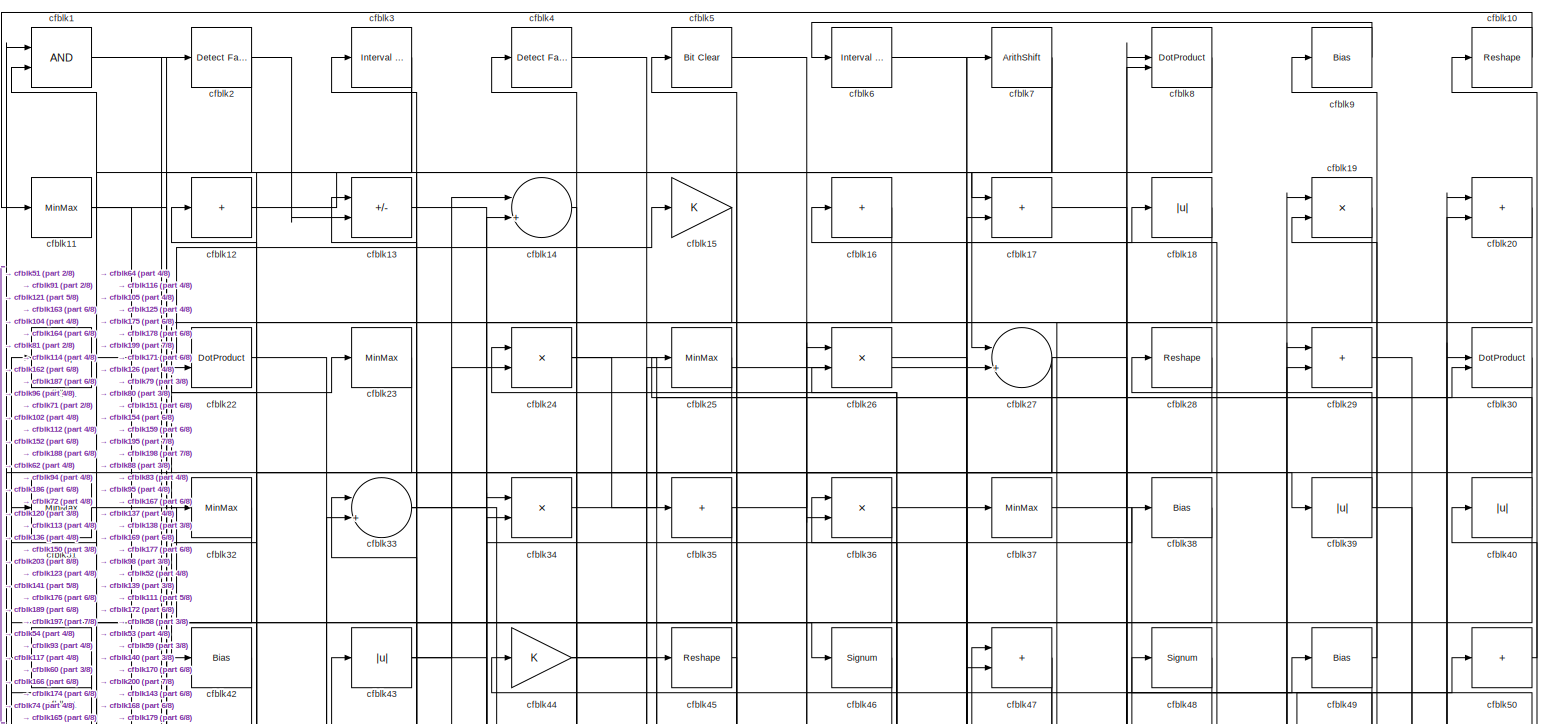
[diagram: root canvas - part 1/8, full width, top band]
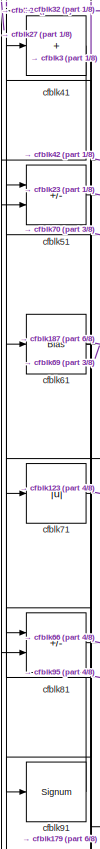
[diagram: root canvas - part 2/8, middle left region]
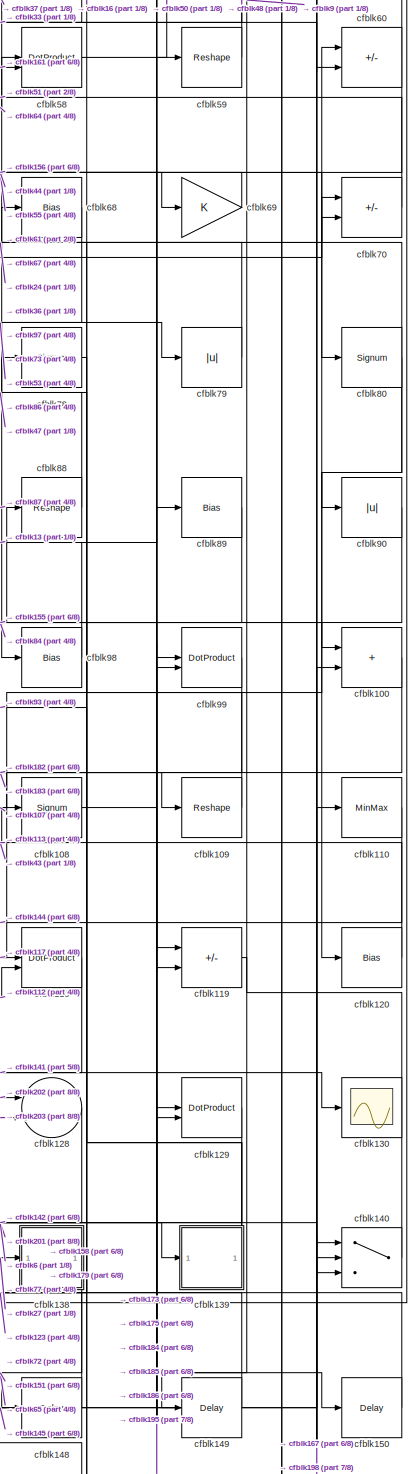
[diagram: root canvas - part 3/8, middle right region]
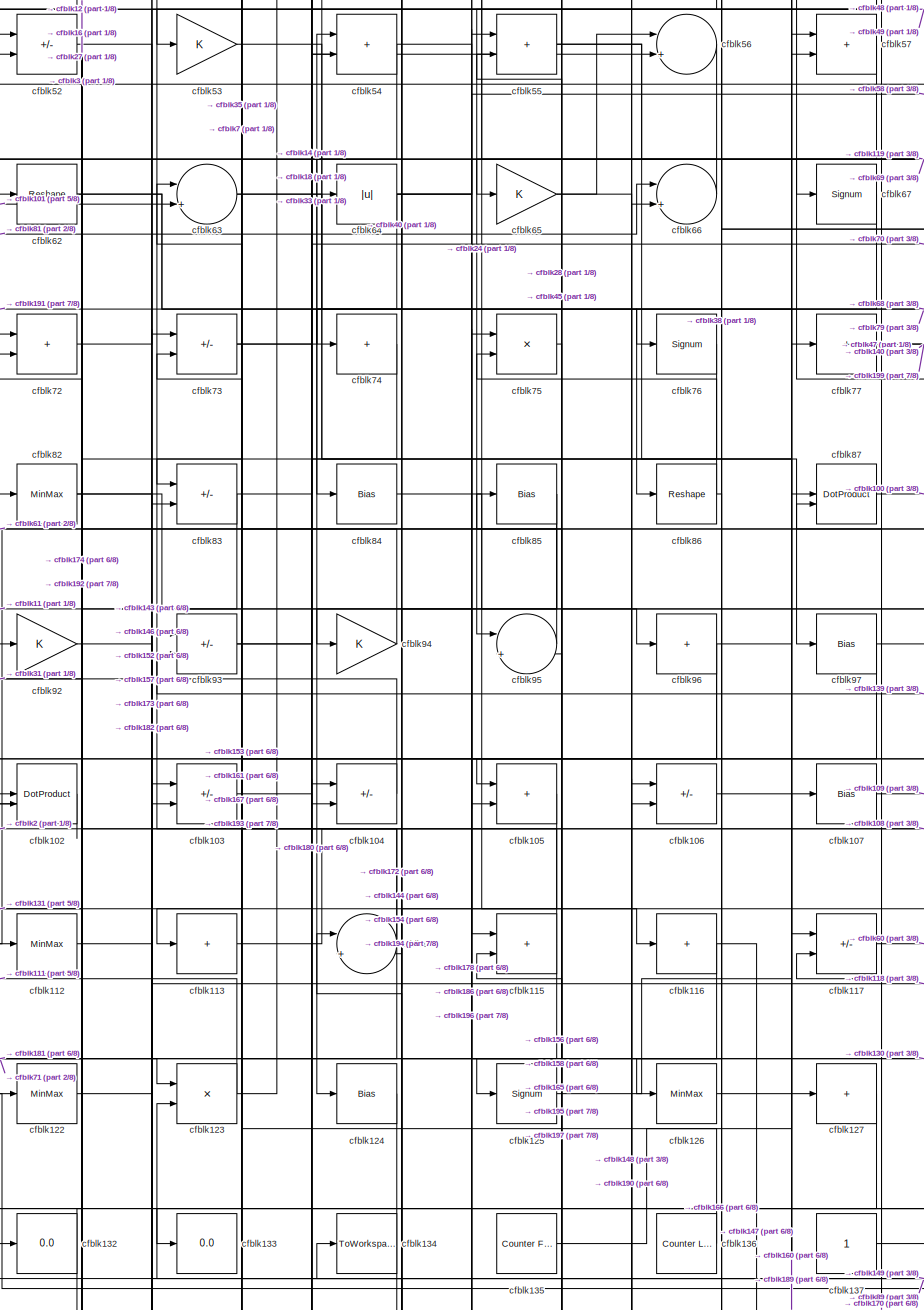
[diagram: root canvas - part 4/8, central region]
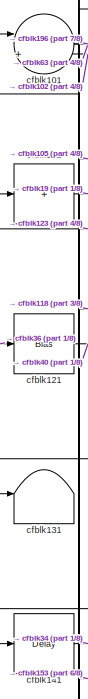
[diagram: root canvas - part 5/8, middle left region]
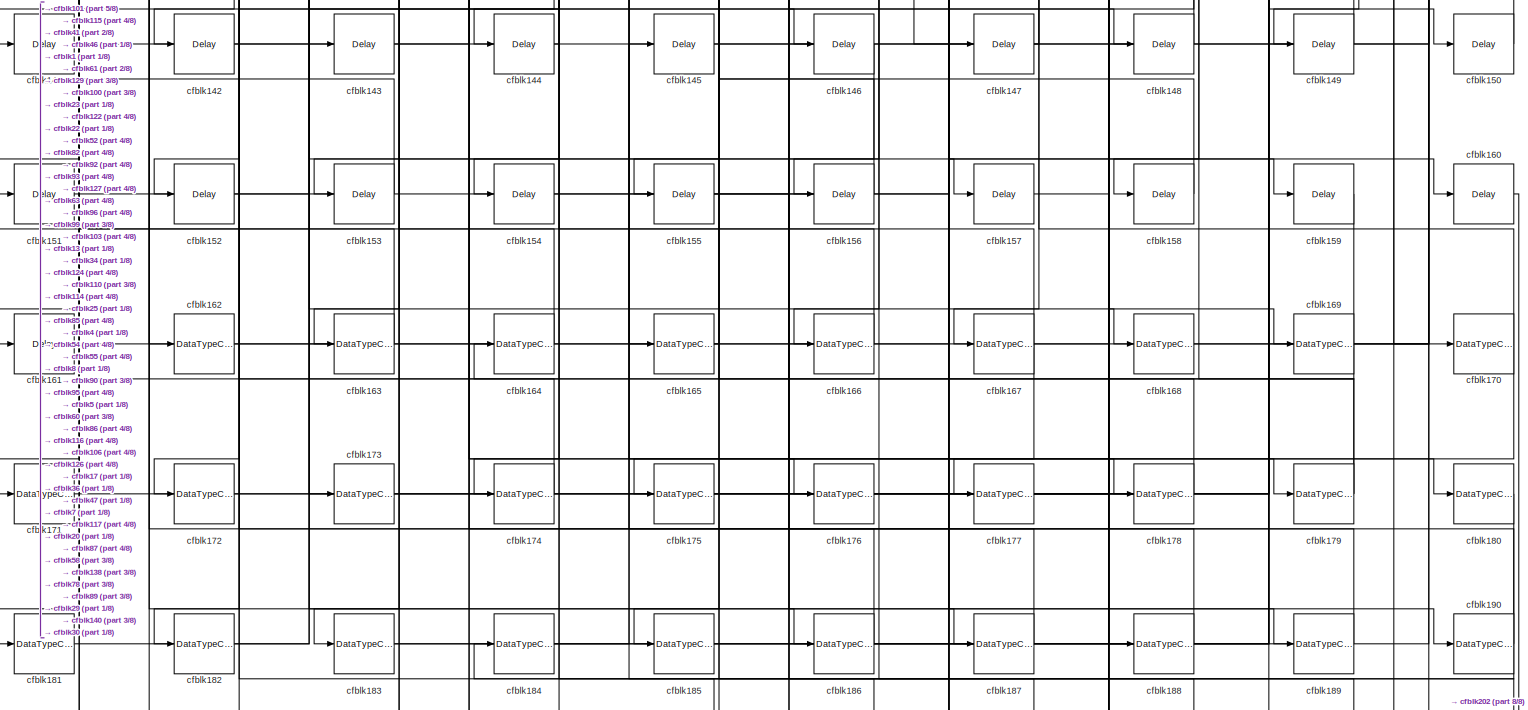
[diagram: root canvas - part 6/8, full width, bottom band]
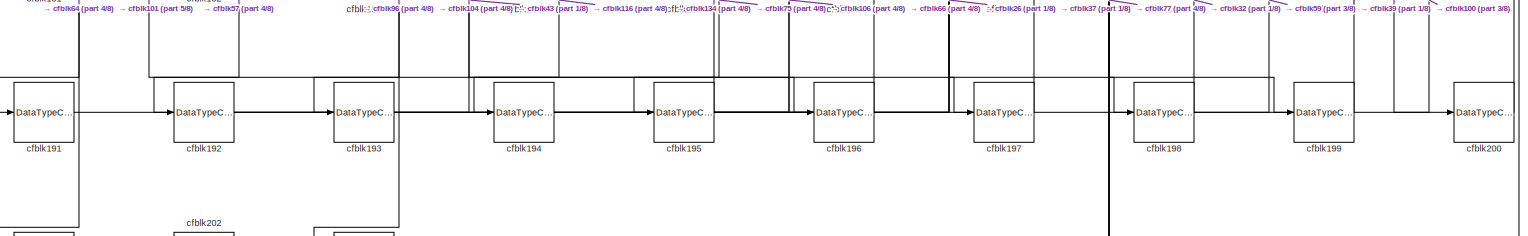
[diagram: root canvas - part 7/8, full width, bottom band]
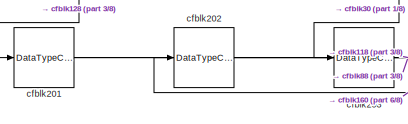
[diagram: root canvas - part 8/8, bottom left region]
MODEL slx_cafd8b495553
KIND model
CONFIG AbsTol = auto
CONFIG EnableMultiTasking = off
CONFIG FixedStep = auto
CONFIG MaxStep = auto
CONFIG MinStep = auto
CONFIG RelTol = 1e-3
CONFIG SampleTimeConstraint = Unconstrained
CONFIG SolverName = VariableStepAuto
CONFIG StartTime = 0.0
CONFIG StopTime = 10.0
BLOCK [Logic] cfblk1
  AllPortsSameDT = off
  OutDataTypeStr = boolean
BLOCK [Reshape] cfblk10
BLOCK [Sum] cfblk100
  IconShape = rectangular
BLOCK [Sum] cfblk101
  Inputs = |++
BLOCK [DotProduct] cfblk102
  OutDataTypeStr = Inherit: Inherit via internal rule
BLOCK [Sum] cfblk103
  IconShape = rectangular
  Inputs = +-
BLOCK [Sum] cfblk104
  IconShape = rectangular
  Inputs = +-
BLOCK [Sum] cfblk105
  IconShape = rectangular
BLOCK [Sum] cfblk106
  IconShape = rectangular
  Inputs = +-
BLOCK [Bias] cfblk107
  Bias = 0.0
  SaturateOnIntegerOverflow = off
BLOCK [Signum] cfblk108
BLOCK [Reshape] cfblk109
BLOCK [MinMax] cfblk11
BLOCK [MinMax] cfblk110
BLOCK [Sum] cfblk111
  IconShape = rectangular
  Inputs = +
BLOCK [MinMax] cfblk112
BLOCK [Sum] cfblk113
  IconShape = rectangular
  Inputs = +
BLOCK [Sum] cfblk114
  Inputs = |++
BLOCK [Sum] cfblk115
  IconShape = rectangular
BLOCK [Sum] cfblk116
  IconShape = rectangular
  Inputs = +
BLOCK [Sum] cfblk117
  IconShape = rectangular
  Inputs = +-
BLOCK [DotProduct] cfblk118
  OutDataTypeStr = Inherit: Inherit via internal rule
BLOCK [Sum] cfblk119
  IconShape = rectangular
  Inputs = +-
BLOCK [Sum] cfblk12
  IconShape = rectangular
  Inputs = +
BLOCK [Bias] cfblk120
  Bias = 0.0
  SaturateOnIntegerOverflow = off
BLOCK [Bias] cfblk121
  Bias = 0.0
  SaturateOnIntegerOverflow = off
BLOCK [MinMax] cfblk122
BLOCK [Product] cfblk123
  Inputs = */
  RndMeth = Zero
  SaturateOnIntegerOverflow = on
BLOCK [Bias] cfblk124
  Bias = 0.0
  SaturateOnIntegerOverflow = off
BLOCK [Signum] cfblk125
BLOCK [MinMax] cfblk126
BLOCK [Sum] cfblk127
  IconShape = rectangular
  Inputs = +
BLOCK [Sum] cfblk128
  Inputs = |++
BLOCK [DotProduct] cfblk129
  OutDataTypeStr = Inherit: Inherit via internal rule
BLOCK [Sum] cfblk13
  IconShape = rectangular
  Inputs = +-
BLOCK [Scope] cfblk130
  Floating = off
  NumInputPorts = 1
  ScopeSpecificationString = Simulink.scopes.TimeScopeBlockCfg('CurrentConfiguration', extmgr.ConfigurationSet(extmgr.Configuration('Core','General UI',true),extmgr.Configuration('Core','Source UI',true),extmgr.Configuration('Sources','WiredSimulink',true,'DataLoggingVariableName','ScopeData2','DataLoggingSaveFormat','Array','DataLoggingLimitDataPoints',true,'DataLoggingDecimation','1'),extmgr.Configuration('Visuals','Time Do...<+868ch>
BLOCK [Terminator] cfblk131
BLOCK [Display] cfblk132
  Decimation = 1
BLOCK [Display] cfblk133
  Decimation = 1
BLOCK [ToWorkspace] cfblk134
  MaxDataPoints = inf
  SampleTime = -1
  SaveFormat = Timeseries
  VariableName = simout
BLOCK [Reference] cfblk135  REF=hdlsllib/Sources/Counter
Free-Running
  SourceBlock = hdlsllib/Sources/Counter\nFree-Running
  SourceType = Counter Free-Running
BLOCK [Reference] cfblk136  REF=hdlsllib/Sources/Counter
Limited
  SourceBlock = hdlsllib/Sources/Counter\nLimited
  SourceType = Counter Limited
BLOCK [Constant] cfblk137
  SampleTime = -1
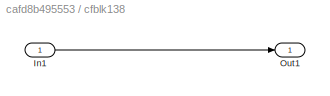
BLOCK [SubSystem] cfblk138
  LibrarySourceBlock = hdlsllib/Ports &\nSubsystems/Subsystem
BLOCK [Inport] cfblk138/In1
BLOCK [Outport] cfblk138/Out1
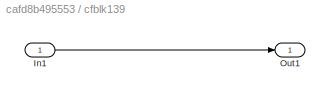
BLOCK [SubSystem] cfblk139
  LibrarySourceBlock = hdlsllib/Ports &\nSubsystems/Subsystem
BLOCK [Inport] cfblk139/In1
BLOCK [Outport] cfblk139/Out1
BLOCK [Sum] cfblk14
  Inputs = |++
BLOCK [Switch] cfblk140
  InputSameDT = off
  SaturateOnIntegerOverflow = off
BLOCK [Delay] cfblk141
  InputPortMap = u0
  SampleTime = 1
BLOCK [Delay] cfblk142
  InputPortMap = u0
  SampleTime = 1
BLOCK [Delay] cfblk143
  InputPortMap = u0
  SampleTime = 1
BLOCK [Delay] cfblk144
  InputPortMap = u0
  SampleTime = 1
BLOCK [Delay] cfblk145
  InputPortMap = u0
  SampleTime = 1
BLOCK [Delay] cfblk146
  InputPortMap = u0
  SampleTime = 1
BLOCK [Delay] cfblk147
  InputPortMap = u0
  SampleTime = 1
BLOCK [Delay] cfblk148
  InputPortMap = u0
  SampleTime = 1
BLOCK [Delay] cfblk149
  InputPortMap = u0
  SampleTime = 1
BLOCK [Gain] cfblk15
BLOCK [Delay] cfblk150
  InputPortMap = u0
  SampleTime = 1
BLOCK [Delay] cfblk151
  InputPortMap = u0
  SampleTime = 1
BLOCK [Delay] cfblk152
  InputPortMap = u0
  SampleTime = 1
BLOCK [Delay] cfblk153
  InputPortMap = u0
  SampleTime = 1
BLOCK [Delay] cfblk154
  InputPortMap = u0
  SampleTime = 1
BLOCK [Delay] cfblk155
  InputPortMap = u0
  SampleTime = 1
BLOCK [Delay] cfblk156
  InputPortMap = u0
  SampleTime = 1
BLOCK [Delay] cfblk157
  InputPortMap = u0
  SampleTime = 1
BLOCK [Delay] cfblk158
  InputPortMap = u0
  SampleTime = 1
BLOCK [Delay] cfblk159
  InputPortMap = u0
  SampleTime = 1
BLOCK [Sum] cfblk16
  IconShape = rectangular
  Inputs = +
BLOCK [Delay] cfblk160
  InputPortMap = u0
  SampleTime = 1
BLOCK [Delay] cfblk161
  InputPortMap = u0
  SampleTime = 1
BLOCK [DataTypeConversion] cfblk162
  OutDataTypeStr = uint8
  RndMeth = Floor
  SaturateOnIntegerOverflow = off
BLOCK [DataTypeConversion] cfblk163
  OutDataTypeStr = uint8
  RndMeth = Floor
  SaturateOnIntegerOverflow = off
BLOCK [DataTypeConversion] cfblk164
  OutDataTypeStr = uint8
  RndMeth = Floor
  SaturateOnIntegerOverflow = off
BLOCK [DataTypeConversion] cfblk165
  OutDataTypeStr = uint8
  RndMeth = Floor
  SaturateOnIntegerOverflow = off
BLOCK [DataTypeConversion] cfblk166
  OutDataTypeStr = uint8
  RndMeth = Floor
  SaturateOnIntegerOverflow = off
BLOCK [DataTypeConversion] cfblk167
  RndMeth = Floor
  SaturateOnIntegerOverflow = off
BLOCK [DataTypeConversion] cfblk168
  OutDataTypeStr = uint8
  RndMeth = Floor
  SaturateOnIntegerOverflow = off
BLOCK [DataTypeConversion] cfblk169
  OutDataTypeStr = uint8
  RndMeth = Floor
  SaturateOnIntegerOverflow = off
BLOCK [Sum] cfblk17
  IconShape = rectangular
BLOCK [DataTypeConversion] cfblk170
  RndMeth = Floor
  SaturateOnIntegerOverflow = off
BLOCK [DataTypeConversion] cfblk171
  OutDataTypeStr = uint8
  RndMeth = Floor
  SaturateOnIntegerOverflow = off
BLOCK [DataTypeConversion] cfblk172
  OutDataTypeStr = uint8
  RndMeth = Floor
  SaturateOnIntegerOverflow = off
BLOCK [DataTypeConversion] cfblk173
  OutDataTypeStr = uint8
  RndMeth = Floor
  SaturateOnIntegerOverflow = off
BLOCK [DataTypeConversion] cfblk174
  OutDataTypeStr = uint8
  RndMeth = Floor
  SaturateOnIntegerOverflow = off
BLOCK [DataTypeConversion] cfblk175
  OutDataTypeStr = uint8
  RndMeth = Floor
  SaturateOnIntegerOverflow = off
BLOCK [DataTypeConversion] cfblk176
  OutDataTypeStr = uint8
  RndMeth = Floor
  SaturateOnIntegerOverflow = off
BLOCK [DataTypeConversion] cfblk177
  OutDataTypeStr = uint8
  RndMeth = Floor
  SaturateOnIntegerOverflow = off
BLOCK [DataTypeConversion] cfblk178
  OutDataTypeStr = boolean
  RndMeth = Floor
  SaturateOnIntegerOverflow = off
BLOCK [DataTypeConversion] cfblk179
  RndMeth = Floor
  SaturateOnIntegerOverflow = off
BLOCK [Abs] cfblk18
  SaturateOnIntegerOverflow = off
BLOCK [DataTypeConversion] cfblk180
  OutDataTypeStr = uint8
  RndMeth = Floor
  SaturateOnIntegerOverflow = off
BLOCK [DataTypeConversion] cfblk181
  OutDataTypeStr = uint8
  RndMeth = Floor
  SaturateOnIntegerOverflow = off
BLOCK [DataTypeConversion] cfblk182
  OutDataTypeStr = uint8
  RndMeth = Floor
  SaturateOnIntegerOverflow = off
BLOCK [DataTypeConversion] cfblk183
  RndMeth = Floor
  SaturateOnIntegerOverflow = off
BLOCK [DataTypeConversion] cfblk184
  OutDataTypeStr = uint8
  RndMeth = Floor
  SaturateOnIntegerOverflow = off
BLOCK [DataTypeConversion] cfblk185
  OutDataTypeStr = uint8
  RndMeth = Floor
  SaturateOnIntegerOverflow = off
BLOCK [DataTypeConversion] cfblk186
  RndMeth = Floor
  SaturateOnIntegerOverflow = off
BLOCK [DataTypeConversion] cfblk187
  OutDataTypeStr = uint8
  RndMeth = Floor
  SaturateOnIntegerOverflow = off
BLOCK [DataTypeConversion] cfblk188
  OutDataTypeStr = uint8
  RndMeth = Floor
  SaturateOnIntegerOverflow = off
BLOCK [DataTypeConversion] cfblk189
  OutDataTypeStr = uint8
  RndMeth = Floor
  SaturateOnIntegerOverflow = off
BLOCK [Product] cfblk19
  Inputs = */
  RndMeth = Zero
  SaturateOnIntegerOverflow = on
BLOCK [DataTypeConversion] cfblk190
  OutDataTypeStr = uint8
  RndMeth = Floor
  SaturateOnIntegerOverflow = off
BLOCK [DataTypeConversion] cfblk191
  OutDataTypeStr = uint8
  RndMeth = Floor
  SaturateOnIntegerOverflow = off
BLOCK [DataTypeConversion] cfblk192
  RndMeth = Floor
  SaturateOnIntegerOverflow = off
BLOCK [DataTypeConversion] cfblk193
  OutDataTypeStr = uint8
  RndMeth = Floor
  SaturateOnIntegerOverflow = off
BLOCK [DataTypeConversion] cfblk194
  OutDataTypeStr = uint8
  RndMeth = Floor
  SaturateOnIntegerOverflow = off
BLOCK [DataTypeConversion] cfblk195
  RndMeth = Floor
  SaturateOnIntegerOverflow = off
BLOCK [DataTypeConversion] cfblk196
  OutDataTypeStr = uint8
  RndMeth = Floor
  SaturateOnIntegerOverflow = off
BLOCK [DataTypeConversion] cfblk197
  OutDataTypeStr = uint8
  RndMeth = Floor
  SaturateOnIntegerOverflow = off
BLOCK [DataTypeConversion] cfblk198
  RndMeth = Floor
  SaturateOnIntegerOverflow = off
BLOCK [DataTypeConversion] cfblk199
  OutDataTypeStr = uint8
  RndMeth = Floor
  SaturateOnIntegerOverflow = off
BLOCK [Reference] cfblk2  REF=hdlsllib/Logic and Bit
Operations/Detect Fall
Nonpositive
  SourceBlock = hdlsllib/Logic and Bit\nOperations/Detect Fall\nNonpositive
  SourceType = Detect Fall Nonpositive
BLOCK [Sum] cfblk20
  IconShape = rectangular
BLOCK [DataTypeConversion] cfblk200
  OutDataTypeStr = uint8
  RndMeth = Floor
  SaturateOnIntegerOverflow = off
BLOCK [DataTypeConversion] cfblk201
  RndMeth = Floor
  SaturateOnIntegerOverflow = off
BLOCK [DataTypeConversion] cfblk202
  OutDataTypeStr = uint8
  RndMeth = Floor
  SaturateOnIntegerOverflow = off
BLOCK [DataTypeConversion] cfblk203
  OutDataTypeStr = uint8
  RndMeth = Floor
  SaturateOnIntegerOverflow = off
BLOCK [Reshape] cfblk21
BLOCK [DotProduct] cfblk22
  OutDataTypeStr = Inherit: Inherit via internal rule
BLOCK [MinMax] cfblk23
BLOCK [Product] cfblk24
  Inputs = */
  RndMeth = Zero
  SaturateOnIntegerOverflow = on
BLOCK [MinMax] cfblk25
BLOCK [Product] cfblk26
  Inputs = */
  RndMeth = Zero
  SaturateOnIntegerOverflow = on
BLOCK [Sum] cfblk27
  Inputs = |++
BLOCK [Reshape] cfblk28
BLOCK [Sum] cfblk29
  IconShape = rectangular
BLOCK [Reference] cfblk3  REF=hdlsllib/Logic and Bit
Operations/Interval Test
  SourceBlock = hdlsllib/Logic and Bit\nOperations/Interval Test
  SourceType = Interval Test
BLOCK [DotProduct] cfblk30
  OutDataTypeStr = Inherit: Inherit via internal rule
BLOCK [MinMax] cfblk31
BLOCK [MinMax] cfblk32
BLOCK [Sum] cfblk33
  Inputs = |++
BLOCK [Product] cfblk34
  Inputs = */
  RndMeth = Zero
  SaturateOnIntegerOverflow = on
BLOCK [Sum] cfblk35
  IconShape = rectangular
  Inputs = +
BLOCK [Product] cfblk36
  Inputs = */
  RndMeth = Zero
  SaturateOnIntegerOverflow = on
BLOCK [MinMax] cfblk37
BLOCK [Bias] cfblk38
  Bias = 0.0
  SaturateOnIntegerOverflow = off
BLOCK [Abs] cfblk39
  SaturateOnIntegerOverflow = off
BLOCK [Reference] cfblk4  REF=hdlsllib/Logic and Bit
Operations/Detect Fall
Negative
  SourceBlock = hdlsllib/Logic and Bit\nOperations/Detect Fall\nNegative
  SourceType = Detect Fall Negative
BLOCK [Abs] cfblk40
  SaturateOnIntegerOverflow = off
BLOCK [Sum] cfblk41
  IconShape = rectangular
  Inputs = +
BLOCK [Bias] cfblk42
  Bias = 0.0
  SaturateOnIntegerOverflow = off
BLOCK [Abs] cfblk43
  SaturateOnIntegerOverflow = off
BLOCK [Gain] cfblk44
BLOCK [Reshape] cfblk45
BLOCK [Signum] cfblk46
BLOCK [Sum] cfblk47
  IconShape = rectangular
BLOCK [Signum] cfblk48
BLOCK [Bias] cfblk49
  Bias = 0.0
  SaturateOnIntegerOverflow = off
BLOCK [Reference] cfblk5  REF=simulink/Logic and Bit
Operations/Bit Clear
  LibrarySourceBlock = hdlsllib/Logic and Bit\nOperations/Bit Clear
  SourceBlock = simulink/Logic and Bit\nOperations/Bit Clear
  SourceType = Bit Clear
BLOCK [Sum] cfblk50
  IconShape = rectangular
  Inputs = +
BLOCK [Sum] cfblk51
  IconShape = rectangular
  Inputs = +-
BLOCK [Sum] cfblk52
  IconShape = rectangular
  Inputs = +-
BLOCK [Gain] cfblk53
BLOCK [Sum] cfblk54
  IconShape = rectangular
BLOCK [Sum] cfblk55
  IconShape = rectangular
BLOCK [Sum] cfblk56
  Inputs = |++
BLOCK [Sum] cfblk57
  IconShape = rectangular
BLOCK [DotProduct] cfblk58
  OutDataTypeStr = Inherit: Inherit via internal rule
BLOCK [Reshape] cfblk59
BLOCK [Reference] cfblk6  REF=hdlsllib/Logic and Bit
Operations/Interval Test
  SourceBlock = hdlsllib/Logic and Bit\nOperations/Interval Test
  SourceType = Interval Test
BLOCK [Sum] cfblk60
  IconShape = rectangular
  Inputs = +-
BLOCK [Bias] cfblk61
  Bias = 0.0
  SaturateOnIntegerOverflow = off
BLOCK [Reshape] cfblk62
BLOCK [Sum] cfblk63
  Inputs = |++
BLOCK [Abs] cfblk64
  SaturateOnIntegerOverflow = off
BLOCK [Gain] cfblk65
BLOCK [Sum] cfblk66
  Inputs = |++
BLOCK [Signum] cfblk67
BLOCK [Bias] cfblk68
  Bias = 0.0
  SaturateOnIntegerOverflow = off
BLOCK [Gain] cfblk69
BLOCK [ArithShift] cfblk7
  BitShiftNumber = 8
  InputPortMap = u0
BLOCK [Sum] cfblk70
  IconShape = rectangular
  Inputs = +-
BLOCK [Abs] cfblk71
  SaturateOnIntegerOverflow = off
BLOCK [Sum] cfblk72
  IconShape = rectangular
BLOCK [Sum] cfblk73
  IconShape = rectangular
  Inputs = +-
BLOCK [Sum] cfblk74
  IconShape = rectangular
  Inputs = +
BLOCK [Product] cfblk75
  Inputs = */
  RndMeth = Zero
  SaturateOnIntegerOverflow = on
BLOCK [Signum] cfblk76
BLOCK [Sum] cfblk77
  IconShape = rectangular
  Inputs = +
BLOCK [Signum] cfblk78
BLOCK [Abs] cfblk79
  SaturateOnIntegerOverflow = off
BLOCK [DotProduct] cfblk8
  OutDataTypeStr = Inherit: Inherit via internal rule
BLOCK [Signum] cfblk80
BLOCK [Sum] cfblk81
  IconShape = rectangular
  Inputs = +-
BLOCK [MinMax] cfblk82
BLOCK [Sum] cfblk83
  IconShape = rectangular
  Inputs = +-
BLOCK [Bias] cfblk84
  Bias = 0.0
  SaturateOnIntegerOverflow = off
BLOCK [Bias] cfblk85
  Bias = 0.0
  SaturateOnIntegerOverflow = off
BLOCK [Reshape] cfblk86
BLOCK [DotProduct] cfblk87
  OutDataTypeStr = Inherit: Inherit via internal rule
BLOCK [Reshape] cfblk88
BLOCK [Bias] cfblk89
  Bias = 0.0
  SaturateOnIntegerOverflow = off
BLOCK [Bias] cfblk9
  Bias = 0.0
  SaturateOnIntegerOverflow = off
BLOCK [Abs] cfblk90
  SaturateOnIntegerOverflow = off
BLOCK [Signum] cfblk91
BLOCK [Gain] cfblk92
BLOCK [Sum] cfblk93
  IconShape = rectangular
  Inputs = +-
BLOCK [Gain] cfblk94
BLOCK [Sum] cfblk95
  Inputs = |++
BLOCK [Sum] cfblk96
  IconShape = rectangular
  Inputs = +
BLOCK [Bias] cfblk97
  Bias = 0.0
  SaturateOnIntegerOverflow = off
BLOCK [Bias] cfblk98
  Bias = 0.0
  SaturateOnIntegerOverflow = off
BLOCK [DotProduct] cfblk99
  OutDataTypeStr = Inherit: Inherit via internal rule
LINE cfblk100:1 -> cfblk182:1
NET cfblk101:1 -> cfblk196:1, cfblk63:2
LINE cfblk102:1 -> cfblk101:2
LINE cfblk103:1 -> cfblk180:1
LINE cfblk104:1 -> cfblk31:1
LINE cfblk105:1 -> cfblk131:1
LINE cfblk106:1 -> cfblk189:1
LINE cfblk107:1 -> cfblk109:1
LINE cfblk108:1 -> cfblk150:1
LINE cfblk109:1 -> cfblk68:1
LINE cfblk10:1 -> cfblk11:1
LINE cfblk110:1 -> cfblk144:1
LINE cfblk111:1 -> cfblk19:1
LINE cfblk112:1 -> cfblk118:2
LINE cfblk113:1 -> cfblk108:1
NET cfblk114:1 -> cfblk133:1, cfblk2:1, cfblk73:2
NET cfblk115:1 -> cfblk181:1, cfblk72:2
NET cfblk116:1 -> cfblk147:1, cfblk194:1
LINE cfblk117:1 -> cfblk60:1
LINE cfblk118:1 -> cfblk141:1
LINE cfblk119:1 -> cfblk149:1
NET cfblk11:1 -> cfblk102:2, cfblk96:1
LINE cfblk120:1 -> cfblk43:1
LINE cfblk121:1 -> cfblk40:1
LINE cfblk122:1 -> cfblk146:1
NET cfblk123:1 -> cfblk111:1, cfblk24:2
LINE cfblk124:1 -> cfblk172:1
LINE cfblk125:1 -> cfblk107:1
LINE cfblk126:1 -> cfblk160:1
LINE cfblk127:1 -> cfblk153:1
LINE cfblk128:1 -> cfblk201:1
LINE cfblk129:1 -> cfblk142:1
LINE cfblk12:1 -> cfblk27:1
LINE cfblk135:1 -> cfblk77:1
LINE cfblk136:1 -> cfblk3:1
LINE cfblk137:1 -> cfblk49:1
LINE cfblk138/In1:1 -> cfblk138/Out1:1
LINE cfblk138:1 -> cfblk151:1
LINE cfblk139/In1:1 -> cfblk139/Out1:1
NET cfblk139:1 -> cfblk16:1, cfblk93:2
LINE cfblk13:1 -> cfblk176:1
LINE cfblk140:1 -> cfblk9:1
LINE cfblk141:1 -> cfblk34:2
LINE cfblk142:1 -> cfblk168:1
LINE cfblk143:1 -> cfblk30:1
LINE cfblk144:1 -> cfblk114:1
LINE cfblk145:1 -> cfblk140:2
LINE cfblk146:1 -> cfblk163:1
LINE cfblk147:1 -> cfblk117:2
LINE cfblk148:1 -> cfblk73:1
LINE cfblk149:1 -> cfblk72:1
LINE cfblk14:1 -> cfblk74:1
LINE cfblk150:1 -> cfblk33:1
LINE cfblk151:1 -> cfblk47:2
LINE cfblk152:1 -> cfblk93:1
LINE cfblk153:1 -> cfblk101:1
LINE cfblk154:1 -> cfblk17:2
LINE cfblk155:1 -> cfblk190:1
LINE cfblk156:1 -> cfblk115:2
LINE cfblk157:1 -> cfblk188:1
LINE cfblk158:1 -> cfblk95:2
LINE cfblk159:1 -> cfblk164:1
LINE cfblk15:1 -> cfblk42:1
LINE cfblk160:1 -> cfblk202:1
LINE cfblk161:1 -> cfblk58:2
LINE cfblk162:1 -> cfblk7:1
LINE cfblk163:1 -> cfblk1:1
LINE cfblk164:1 -> cfblk1:2
LINE cfblk165:1 -> cfblk85:1
LINE cfblk166:1 -> cfblk4:1
NET cfblk167:1 -> cfblk140:1, cfblk177:1, cfblk63:1
LINE cfblk168:1 -> cfblk20:1
LINE cfblk169:1 -> cfblk20:2
LINE cfblk16:1 -> cfblk112:1
NET cfblk170:1 -> cfblk185:1, cfblk87:2
LINE cfblk171:1 -> cfblk29:1
LINE cfblk172:1 -> cfblk29:2
LINE cfblk173:1 -> cfblk129:2
LINE cfblk174:1 -> cfblk92:1
LINE cfblk175:1 -> cfblk129:1
LINE cfblk176:1 -> cfblk8:1
LINE cfblk177:1 -> cfblk8:2
LINE cfblk178:1 -> cfblk5:1
NET cfblk179:1 -> cfblk41:1, cfblk78:1
LINE cfblk17:1 -> cfblk169:1
LINE cfblk180:1 -> cfblk184:1
LINE cfblk181:1 -> cfblk103:1
LINE cfblk182:1 -> cfblk103:2
NET cfblk183:1 -> cfblk110:1, cfblk145:1
LINE cfblk184:1 -> cfblk99:1
LINE cfblk185:1 -> cfblk99:2
NET cfblk186:1 -> cfblk55:1, cfblk89:1
LINE cfblk187:1 -> cfblk22:1
LINE cfblk188:1 -> cfblk22:2
LINE cfblk189:1 -> cfblk34:1
LINE cfblk18:1 -> cfblk54:2
LINE cfblk190:1 -> cfblk106:1
LINE cfblk191:1 -> cfblk106:2
NET cfblk192:1 -> cfblk104:1, cfblk66:2
LINE cfblk193:1 -> cfblk57:1
LINE cfblk194:1 -> cfblk57:2
NET cfblk195:1 -> cfblk134:1, cfblk37:1, cfblk59:1
LINE cfblk196:1 -> cfblk75:1
LINE cfblk197:1 -> cfblk75:2
NET cfblk198:1 -> cfblk100:2, cfblk32:1
LINE cfblk199:1 -> cfblk26:1
LINE cfblk19:1 -> cfblk36:2
LINE cfblk1:1 -> cfblk162:1
LINE cfblk200:1 -> cfblk26:2
NET cfblk201:1 -> cfblk118:1, cfblk88:1
LINE cfblk202:1 -> cfblk128:1
LINE cfblk203:1 -> cfblk128:2
LINE cfblk20:1 -> cfblk167:1
LINE cfblk21:1 -> cfblk15:1
LINE cfblk22:1 -> cfblk186:1
LINE cfblk23:1 -> cfblk152:1
NET cfblk24:1 -> cfblk116:1, cfblk35:1
LINE cfblk25:1 -> cfblk174:1
LINE cfblk26:1 -> cfblk198:1
NET cfblk27:1 -> cfblk102:1, cfblk138:1, cfblk51:2
LINE cfblk28:1 -> cfblk125:1
LINE cfblk29:1 -> cfblk170:1
NET cfblk2:1 -> cfblk13:2, cfblk52:2
LINE cfblk30:1 -> cfblk203:1
LINE cfblk31:1 -> cfblk46:1
LINE cfblk32:1 -> cfblk81:1
NET cfblk33:1 -> cfblk117:1, cfblk60:2
LINE cfblk34:1 -> cfblk30:2
NET cfblk35:1 -> cfblk113:1, cfblk39:1
NET cfblk36:1 -> cfblk121:1, cfblk159:1
LINE cfblk37:1 -> cfblk98:1
LINE cfblk38:1 -> cfblk126:1
NET cfblk39:1 -> cfblk200:1, cfblk28:1
NET cfblk3:1 -> cfblk62:1, cfblk91:1
NET cfblk40:1 -> cfblk114:2, cfblk25:1
LINE cfblk41:1 -> cfblk81:2
LINE cfblk42:1 -> cfblk71:1
NET cfblk43:1 -> cfblk14:1, cfblk197:1
NET cfblk44:1 -> cfblk45:1, cfblk80:1
LINE cfblk45:1 -> cfblk105:1
LINE cfblk46:1 -> cfblk171:1
NET cfblk47:1 -> cfblk83:2, cfblk95:1
LINE cfblk48:1 -> cfblk52:1
NET cfblk49:1 -> cfblk19:2, cfblk53:1
LINE cfblk4:1 -> cfblk165:1
LINE cfblk50:1 -> cfblk10:1
LINE cfblk51:1 -> cfblk23:1
LINE cfblk52:1 -> cfblk143:1
LINE cfblk53:1 -> cfblk79:1
NET cfblk54:1 -> cfblk178:1, cfblk82:1
NET cfblk55:1 -> cfblk119:2, cfblk97:1
LINE cfblk56:1 -> cfblk84:1
LINE cfblk57:1 -> cfblk192:1
LINE cfblk58:1 -> cfblk50:1
LINE cfblk59:1 -> cfblk48:1
LINE cfblk5:1 -> cfblk179:1
NET cfblk60:1 -> cfblk156:1, cfblk44:1
NET cfblk61:1 -> cfblk187:1, cfblk69:1
NET cfblk62:1 -> cfblk76:1, cfblk87:1
NET cfblk63:1 -> cfblk127:1, cfblk56:2
NET cfblk64:1 -> cfblk130:1, cfblk191:1, cfblk27:2, cfblk58:1
NET cfblk65:1 -> cfblk148:1, cfblk56:1
LINE cfblk66:1 -> cfblk65:1
LINE cfblk67:1 -> cfblk124:1
LINE cfblk68:1 -> cfblk86:1
LINE cfblk69:1 -> cfblk67:1
LINE cfblk6:1 -> cfblk139:1
LINE cfblk70:1 -> cfblk51:1
LINE cfblk71:1 -> cfblk123:1
LINE cfblk72:1 -> cfblk33:2
NET cfblk73:1 -> cfblk54:1, cfblk70:2
LINE cfblk74:1 -> cfblk122:1
LINE cfblk75:1 -> cfblk195:1
LINE cfblk76:1 -> cfblk104:2
NET cfblk77:1 -> cfblk140:3, cfblk199:1
LINE cfblk78:1 -> cfblk158:1
LINE cfblk79:1 -> cfblk36:1
NET cfblk7:1 -> cfblk17:1, cfblk83:1
NET cfblk80:1 -> cfblk120:1, cfblk24:1, cfblk90:1
LINE cfblk81:1 -> cfblk66:1
NET cfblk82:1 -> cfblk115:1, cfblk157:1
NET cfblk83:1 -> cfblk132:1, cfblk38:1
LINE cfblk84:1 -> cfblk119:1
NET cfblk85:1 -> cfblk154:1, cfblk94:1
NET cfblk86:1 -> cfblk166:1, cfblk55:2
LINE cfblk87:1 -> cfblk100:1
LINE cfblk88:1 -> cfblk47:1
LINE cfblk89:1 -> cfblk123:2
LINE cfblk8:1 -> cfblk175:1
LINE cfblk90:1 -> cfblk155:1
LINE cfblk91:1 -> cfblk21:1
LINE cfblk92:1 -> cfblk173:1
NET cfblk93:1 -> cfblk14:2, cfblk64:1
LINE cfblk94:1 -> cfblk12:1
LINE cfblk95:1 -> cfblk61:1
NET cfblk96:1 -> cfblk161:1, cfblk18:1, cfblk193:1
NET cfblk97:1 -> cfblk105:2, cfblk70:1
LINE cfblk98:1 -> cfblk13:1
LINE cfblk99:1 -> cfblk183:1
LINE cfblk9:1 -> cfblk6:1
note: NET lines group one-source signal fan-out (src -> all destinations, sorted); 1:1 wires keep LINE
